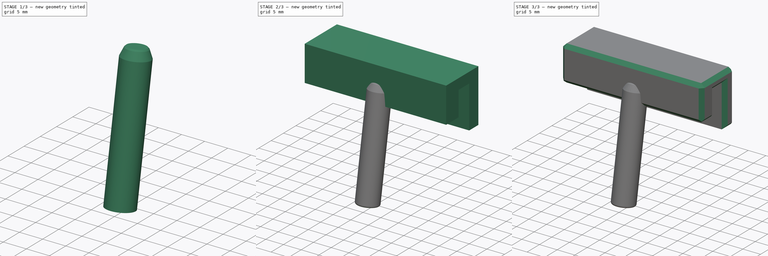
[diagram: build sequence overview — one tinted view per stage of 3, left to right]
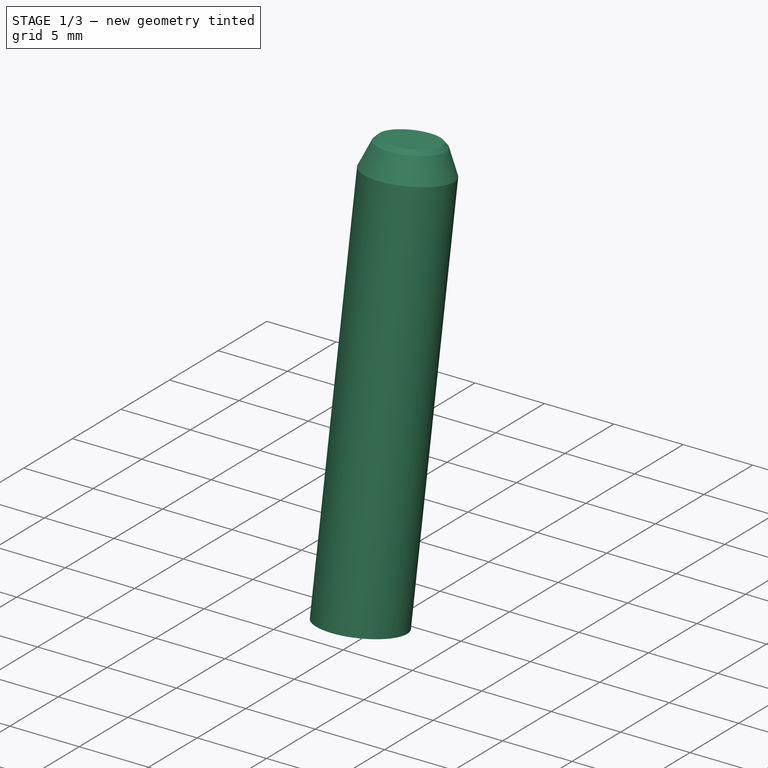
[diagram: stage 1 of 3 — iso view after this stage's code; geometry added in this stage tinted green]
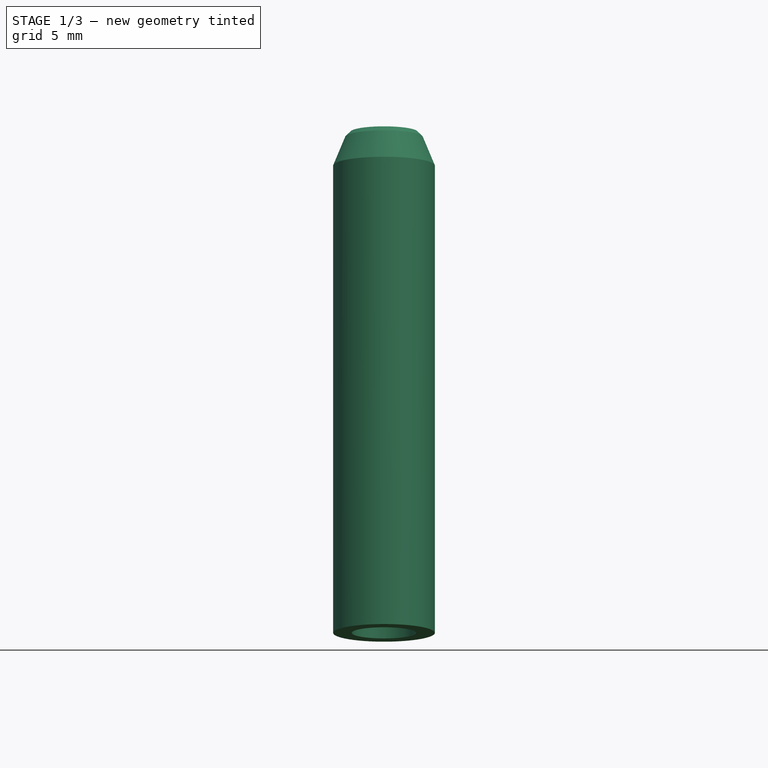
[diagram: stage 1 of 3 — front view after this stage's code; geometry added in this stage tinted green]
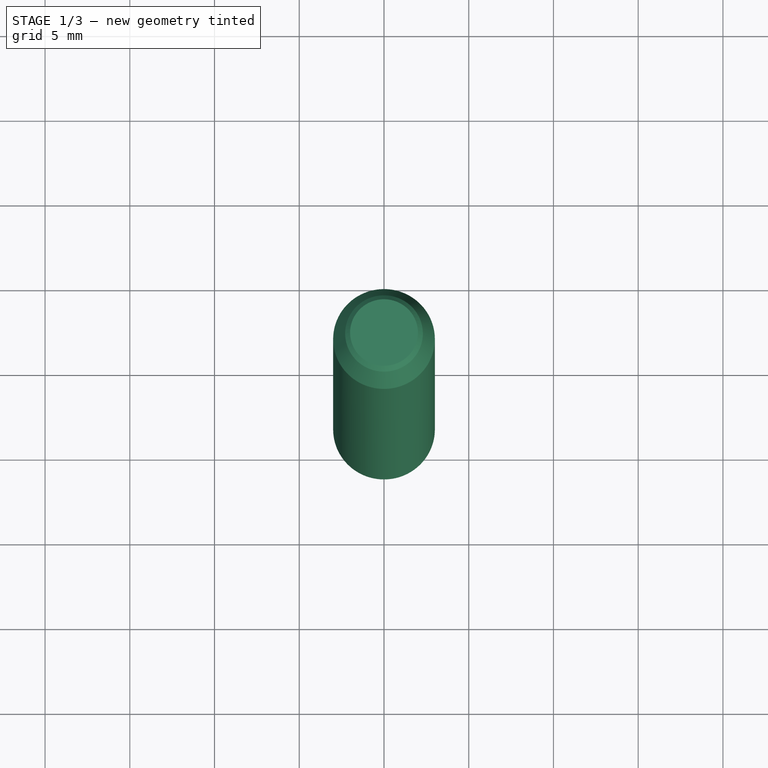
[diagram: stage 1 of 3 — top view after this stage's code; geometry added in this stage tinted green]
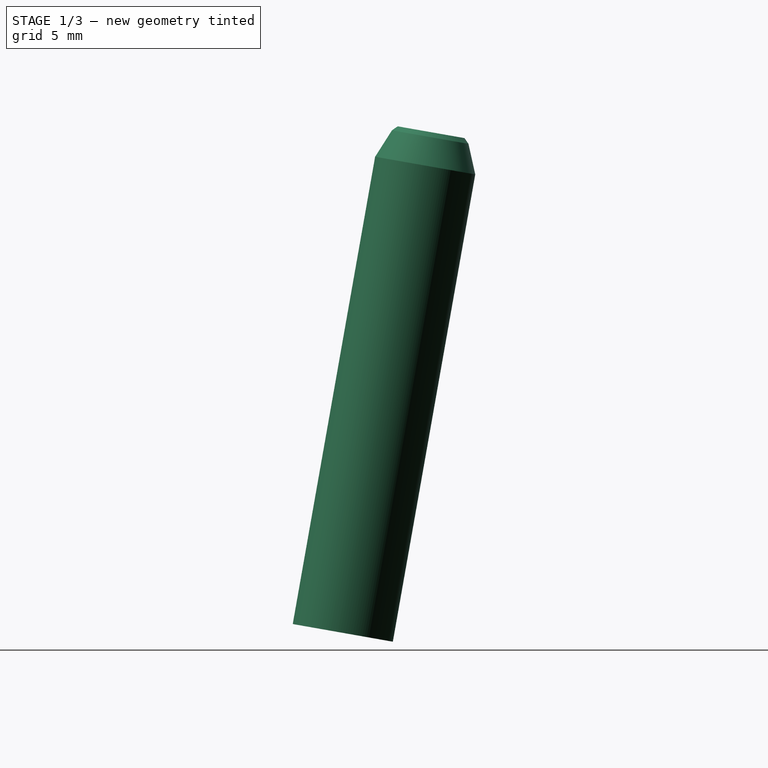
[diagram: stage 1 of 3 — right view after this stage's code; geometry added in this stage tinted green]
FCSTD DOCUMENT  (FreeCAD 0.20R)
Label: stick_holder2
License: All rights reserved
LicenseURL: http://en.wikipedia.org/wiki/All_rights_reserved
objects: PartDesign::Chamfer×4, Sketcher::SketchObject×2, PartDesign::Body×2, PartDesign::Pad×1, PartDesign::Plane×1, PartDesign::Revolution×1, PartDesign::Fillet×1, Part::FeaturePython×1
note: 20 computed .brp shape members not serialized (recipe doc carries the construction recipe); baked Part::Feature solids carry a one-line shape summary decoded from their .brp

FEATURE [PartDesign::Body] Body
  Group = -> [Sketch005,Pad,Chamfer001,Chamfer002]
  Origin = -> Origin
  Tip = -> Chamfer002
FEATURE [PartDesign::Plane] DatumPlane
  AttachmentOffset = pos=(20,0,3) rot=(-1,0,0;0.174533rad)
  Length = 61.217
  MapMode = 5
  Placement = pos=(20,-3,-7e-16) rot=(1,0,0;1.39626rad)
  ResizeMode = 0
  Support = -> [XZ_Plane001]
  Width = 74.1281
FEATURE [Sketcher::SketchObject] Sketch
  FullyConstrained = false
  MapMode = 5
  Placement = pos=(20,-3,-7e-16) rot=(1,0,0;1.39626rad)
  Support = -> [DatumPlane]
  sketch-geometry (6):
    g0: LineSegment StartX=0 StartY=0 StartZ=0 EndX=-3 EndY=-1.3e-15 EndZ=0
    g1: LineSegment StartX=-3 StartY=-1.3e-15 StartZ=0 EndX=-3 EndY=-30 EndZ=0
    g2: LineSegment StartX=-3 StartY=-30 StartZ=0 EndX=-1.89996 EndY=-30 EndZ=0
    g3: LineSegment StartX=0 StartY=-5 StartZ=0 EndX=0 EndY=0 EndZ=0
    g4: LineSegment StartX=-1.89996 StartY=-30 StartZ=0 EndX=-1.89996 EndY=-15 EndZ=0
    g5: LineSegment StartX=-1.89996 StartY=-15 StartZ=0 EndX=0 EndY=-5 EndZ=0
  constraints (16):
    c: DistanceX(g1) = -3
    c: DistanceY(g1) = -30
    c: Coincident(g0,g1)
    c: Coincident(g1,g2)
    c: DistanceY(g1,g1) = 30
    c: Perpendicular(g1,g2)
    c: Coincident(g0,g3)
    c: Coincident(g0,g-1)
    c: DistanceX(g3,g0) = 0
    c: DistanceX(g0,g0) = 3
    c: Coincident(g4,g2)
    c: Vertical(g4)
    c: Coincident(g5,g4)
    c: Coincident(g5,g3)
    c: DistanceY(g4,g4) = 15
    c: DistanceY(g3,g3) = 5
FEATURE [PartDesign::Revolution] Revolution
  Angle = 360
  Axis = (0,0.173648,0.984808)
  Base = (20,-3,-7e-16)
  Placement = pos=(20,-3,-7e-16) rot=(1,0,0;1.39626rad)
  Profile = -> Sketch
  ReferenceAxis = -> Sketch [V_Axis]
FEATURE [PartDesign::Chamfer] Chamfer
  Angle = 45
  Base = -> Revolution [Edge1]
  BaseFeature = -> Revolution
  ChamferType = 0
  FlipDirection = false
  Placement = pos=(20,-3,-7e-16) rot=(1,0,0;1.39626rad)
  Size = 1
  Size2 = 1
  SupportTransform = false
  UseAllEdges = false
FEATURE [PartDesign::Chamfer] Chamfer003
  Angle = 45
  Base = -> Chamfer [Edge3]
  BaseFeature = -> Chamfer
  ChamferType = 0
  FlipDirection = false
  Placement = pos=(20,-3,-7e-16) rot=(1,0,0;1.39626rad)
  Size = 1
  Size2 = 1
  SupportTransform = false
  UseAllEdges = false
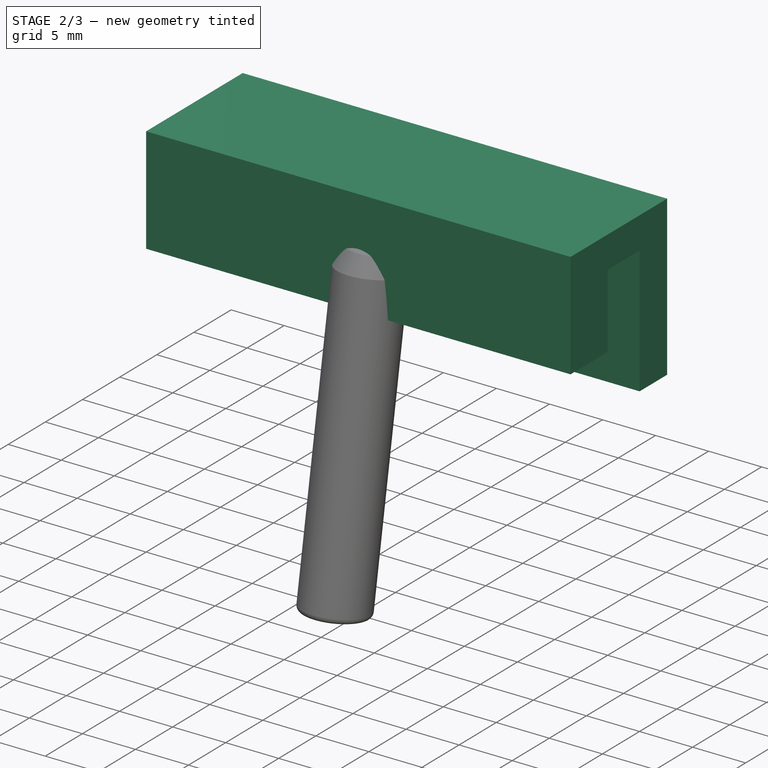
[diagram: stage 2 of 3 — iso view after this stage's code; geometry added in this stage tinted green]
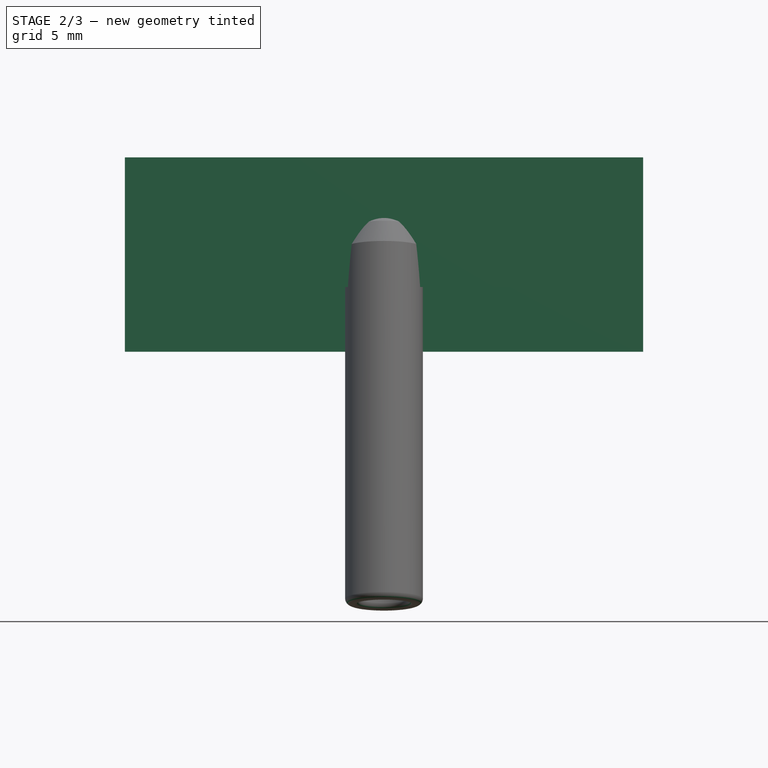
[diagram: stage 2 of 3 — front view after this stage's code; geometry added in this stage tinted green]
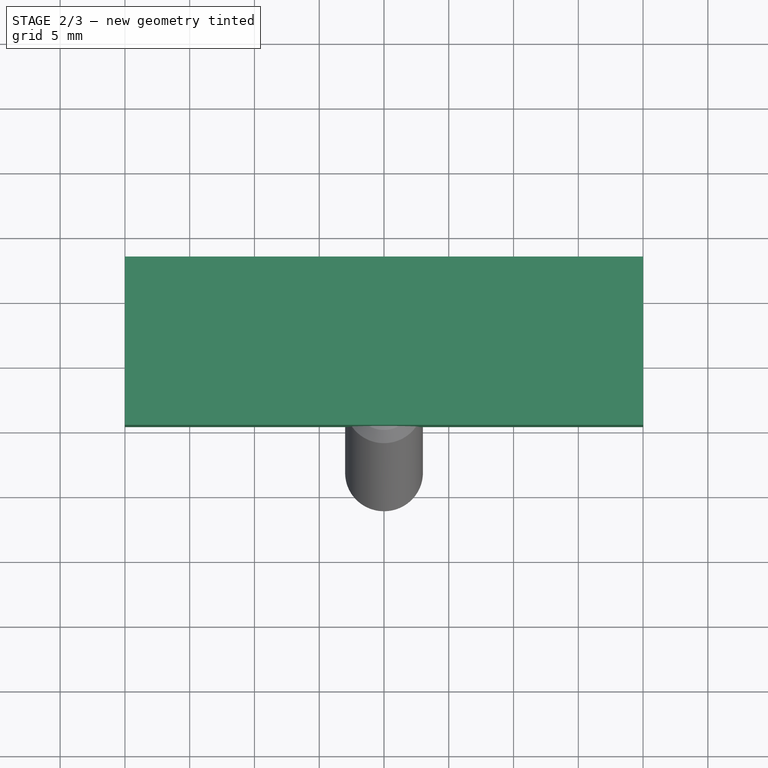
[diagram: stage 2 of 3 — top view after this stage's code; geometry added in this stage tinted green]
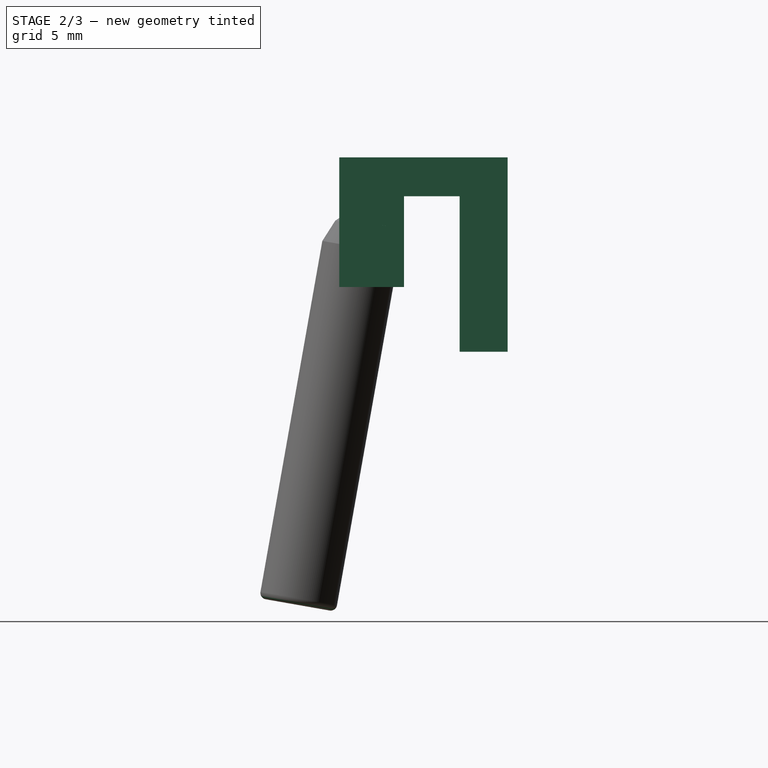
[diagram: stage 2 of 3 — right view after this stage's code; geometry added in this stage tinted green]
FEATURE [Sketcher::SketchObject] Sketch005
  FullyConstrained = false
  MapMode = 5
  Placement = pos=(0,0,0) rot=(0.57735,0.57735,0.57735;2.0944rad)
  sketch-geometry (9):
    g0: LineSegment StartX=4.3 StartY=-10 StartZ=0 EndX=8 EndY=-10 EndZ=0
    g1: LineSegment StartX=8 StartY=-10 StartZ=0 EndX=8 EndY=5 EndZ=0
    g2: LineSegment StartX=4.3 StartY=2 StartZ=0 EndX=4.3 EndY=-10 EndZ=0
    g3: LineSegment StartX=0 StartY=2 StartZ=0 EndX=4.3 EndY=2 EndZ=0
    g4: LineSegment StartX=-5 StartY=5 StartZ=0 EndX=8 EndY=5 EndZ=0
    g5: LineSegment StartX=-5 StartY=5 StartZ=0 EndX=-5 EndY=-2 EndZ=0
    g6: LineSegment StartX=-5 StartY=-2 StartZ=0 EndX=-5 EndY=-5 EndZ=0
    g7: LineSegment StartX=-5 StartY=-5 StartZ=0 EndX=0 EndY=-5 EndZ=0
    g8: LineSegment StartX=0 StartY=-5 StartZ=0 EndX=0 EndY=2 EndZ=0
  constraints (26):
    c: Coincident(g0,g1)
    c: Coincident(g2,g0)
    c: Horizontal(g0)
    c: Vertical(g1)
    c: Vertical(g2)
    c: Horizontal(g3)
    c: Coincident(g2,g3)
    c: DistanceX(g3,g2) = 4.3
    c: DistanceY(g2,g2) = 12
    c: DistanceY(g1,g1) = 15
    c: Coincident(g4,g1)
    c: Horizontal(g4)
    c: DistanceX(g3,g0) = 8
    c: DistanceY(g-1,g4) = 5
    c: DistanceX(g-1,g3) = 0
    c: Coincident(g5,g4)
    c: DistanceX(g4) = -5
    c: Perpendicular(g4,g5)
    c: Coincident(g6,g5)
    c: Coincident(g7,g6)
    c: Coincident(g8,g7)
    c: Coincident(g8,g3)
    c: Perpendicular(g8,g3)
    c: Perpendicular(g8,g7)
    c: Perpendicular(g7,g6)
    c: DistanceY(g6,g-1) = 5
FEATURE [PartDesign::Pad] Pad
  Direction = (1,0,0)
  Length = 40
  Length2 = 10
  Placement = pos=(0,0,0) rot=(0.57735,0.57735,0.57735;2.0944rad)
  Profile = -> Sketch005
  ReferenceAxis = -> Sketch005 [N_Axis]
  Type = 0
FEATURE [PartDesign::Fillet] Fillet
  Base = -> Chamfer003 [Face5]
  BaseFeature = -> Chamfer003
  Placement = pos=(20,-3,-7e-16) rot=(1,0,0;1.39626rad)
  Radius = 0.5
  SupportTransform = false
  UseAllEdges = false
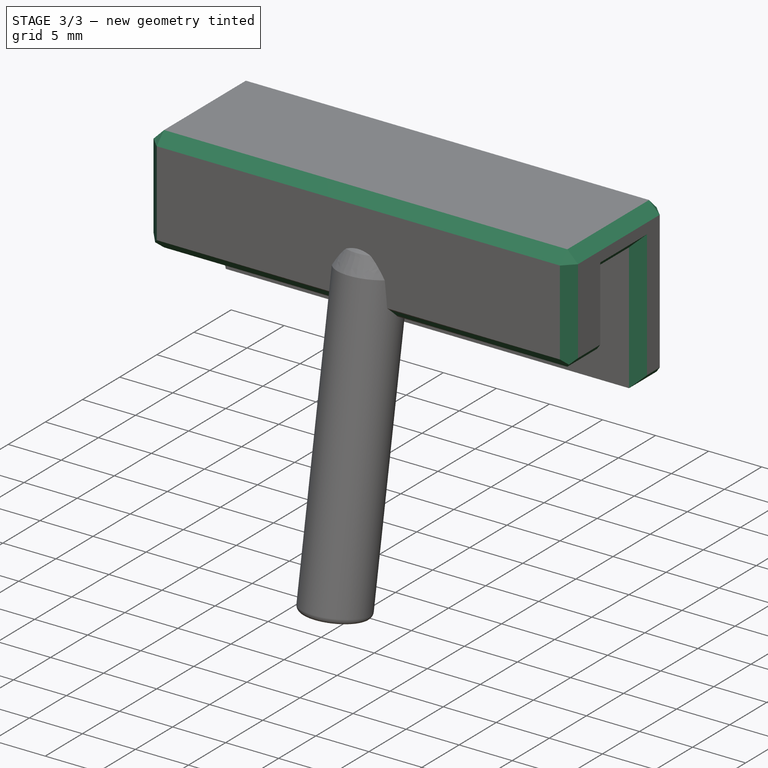
[diagram: stage 3 of 3 — iso view after this stage's code; geometry added in this stage tinted green]
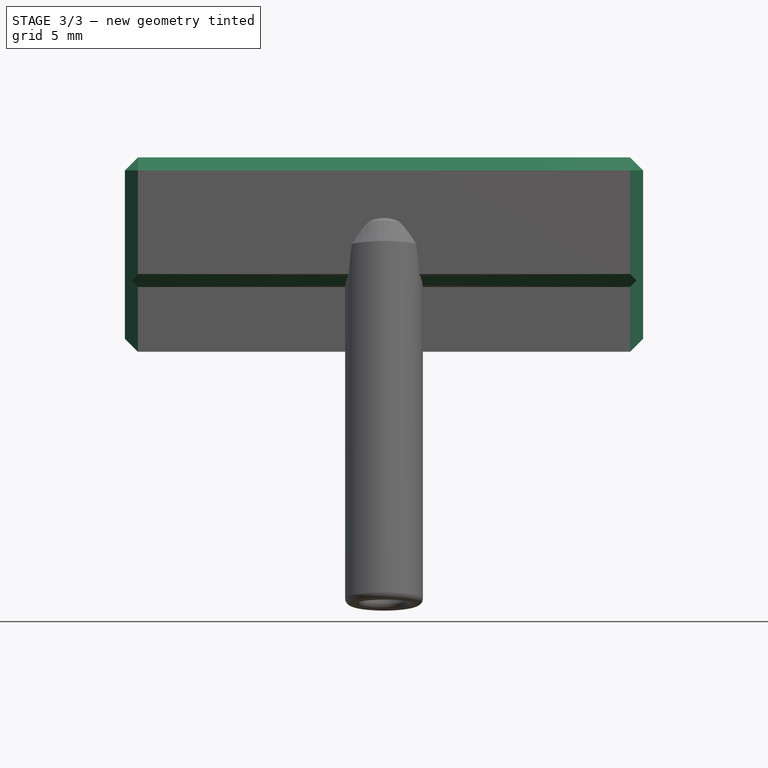
[diagram: stage 3 of 3 — front view after this stage's code; geometry added in this stage tinted green]
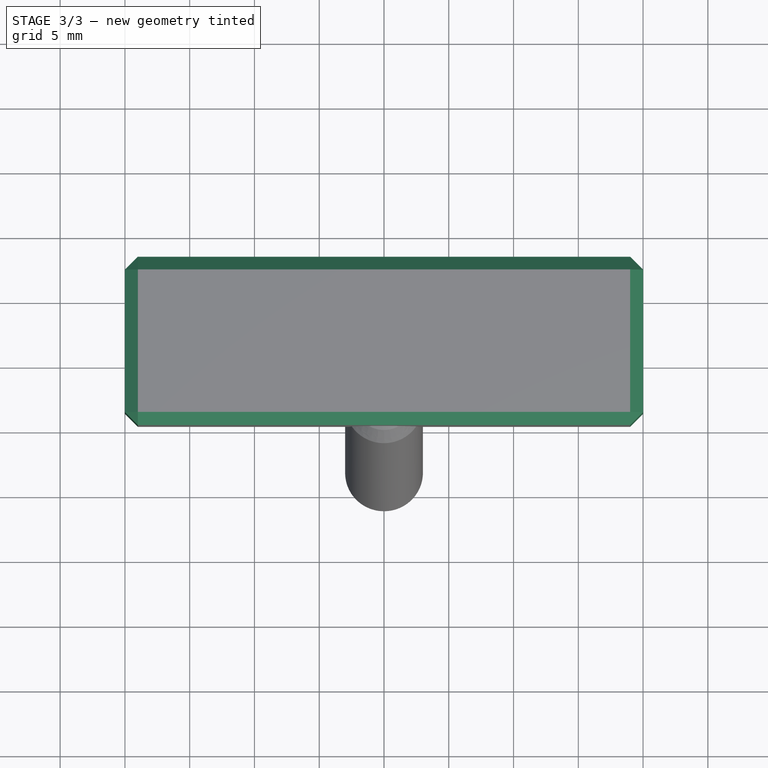
[diagram: stage 3 of 3 — top view after this stage's code; geometry added in this stage tinted green]
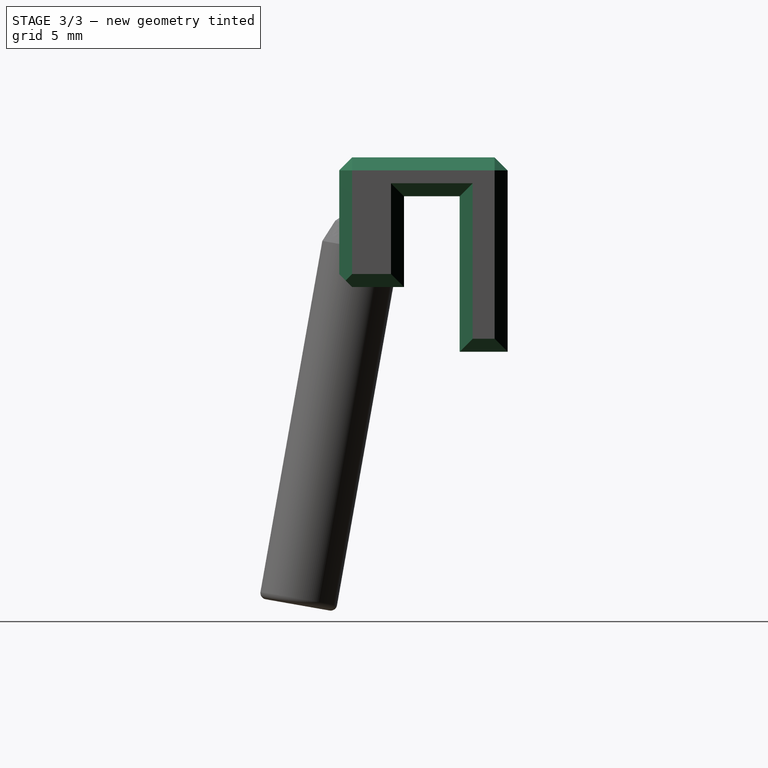
[diagram: stage 3 of 3 — right view after this stage's code; geometry added in this stage tinted green]
FEATURE [PartDesign::Chamfer] Chamfer001
  Angle = 45
  Base = -> Pad [Face11,Face10,Face4,Face3]
  BaseFeature = -> Pad
  ChamferType = 0
  FlipDirection = false
  Placement = pos=(0,0,0) rot=(0.57735,0.57735,0.57735;2.0944rad)
  Size = 1
  Size2 = 1
  SupportTransform = false
  UseAllEdges = false
FEATURE [PartDesign::Chamfer] Chamfer002
  Angle = 45
  Base = -> Chamfer001 [Edge69]
  BaseFeature = -> Chamfer001
  ChamferType = 0
  FlipDirection = false
  Placement = pos=(0,0,0) rot=(0.57735,0.57735,0.57735;2.0944rad)
  Size = 1
  Size2 = 1
  SupportTransform = false
  UseAllEdges = false
FEATURE [PartDesign::Body] Body001
  Group = -> [DatumPlane,Sketch,Revolution,Chamfer,Chamfer003,Fillet]
  Origin = -> Origin001
  Tip = -> Fillet
FEATURE [Part::FeaturePython] Connect  # WARN: FeaturePython — macro-defined, semantics opaque (R4)
  Objects = -> [Body001,Body]
  Tolerance = 0
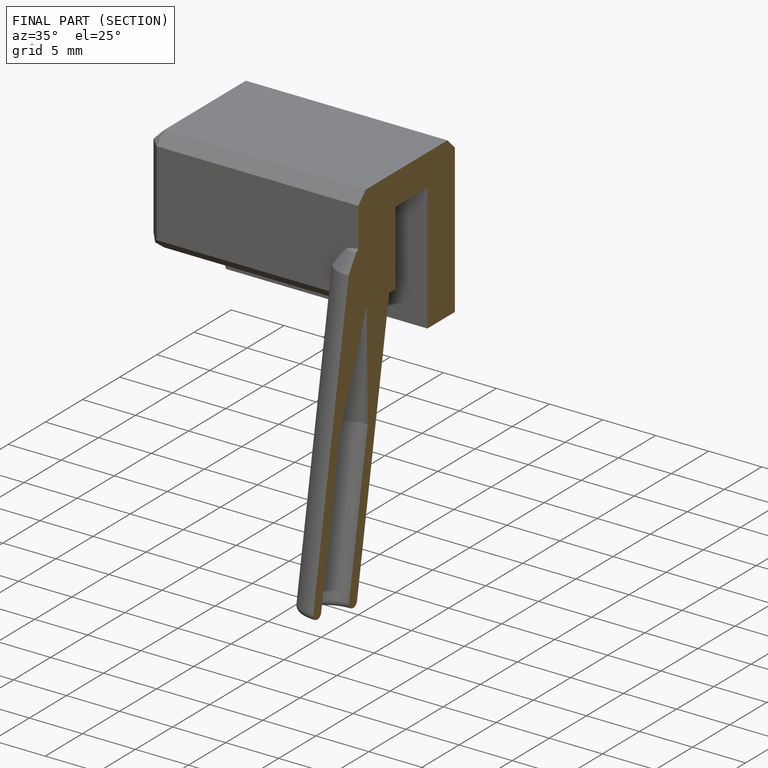
[diagram: finished part — half-section view (interior)]
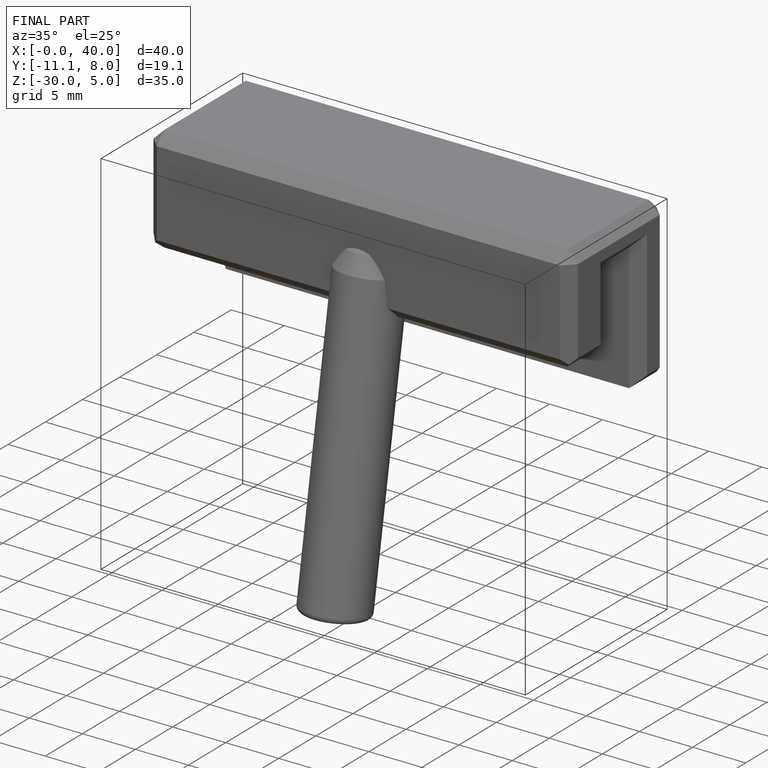
[diagram: finished part — iso view with bounding-box wireframe]
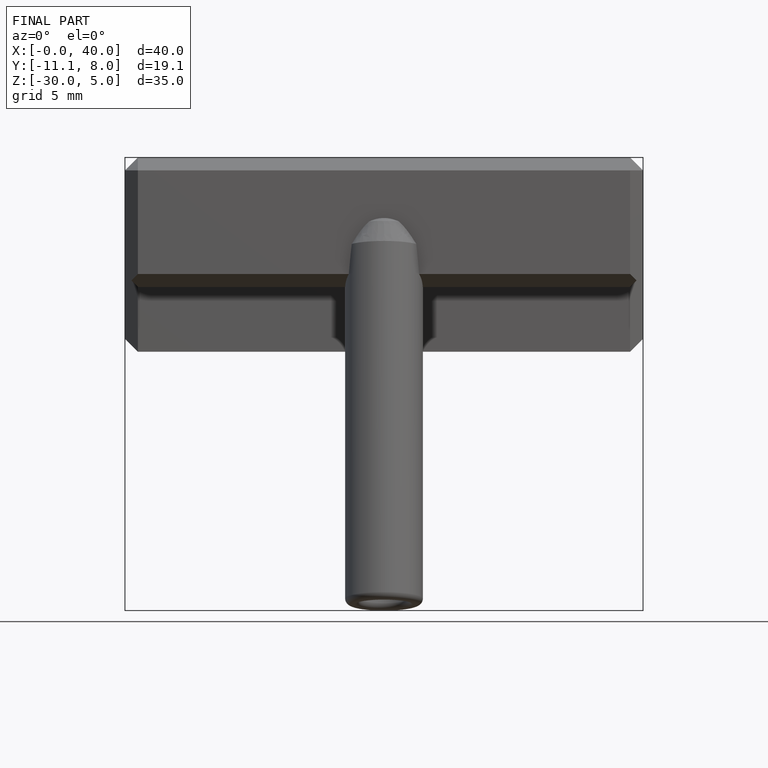
[diagram: finished part — front view with bounding-box wireframe]
